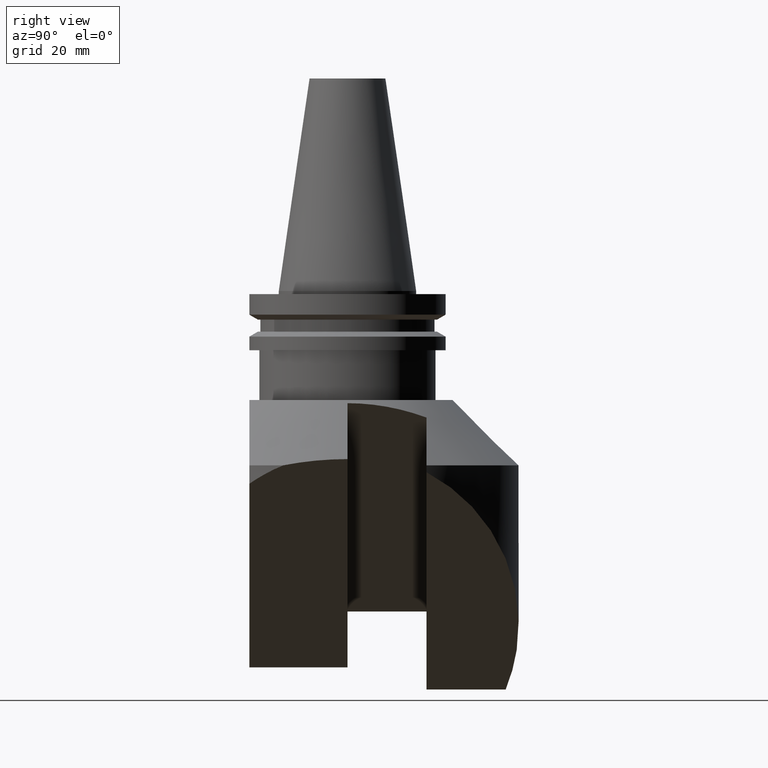
[diagram: clean part render]
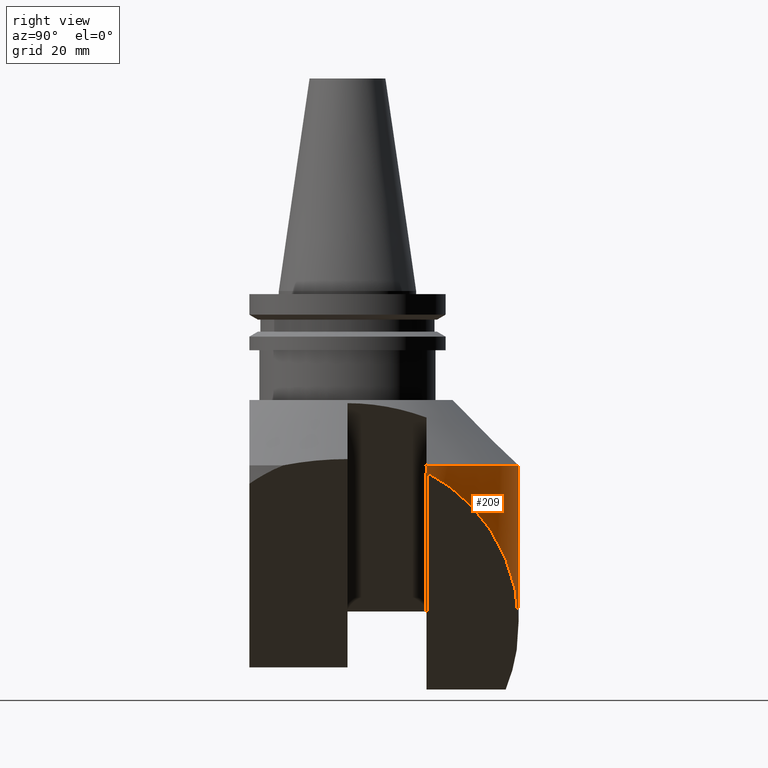
[diagram: same view with one face highlighted and labeled with its STEP entity id]
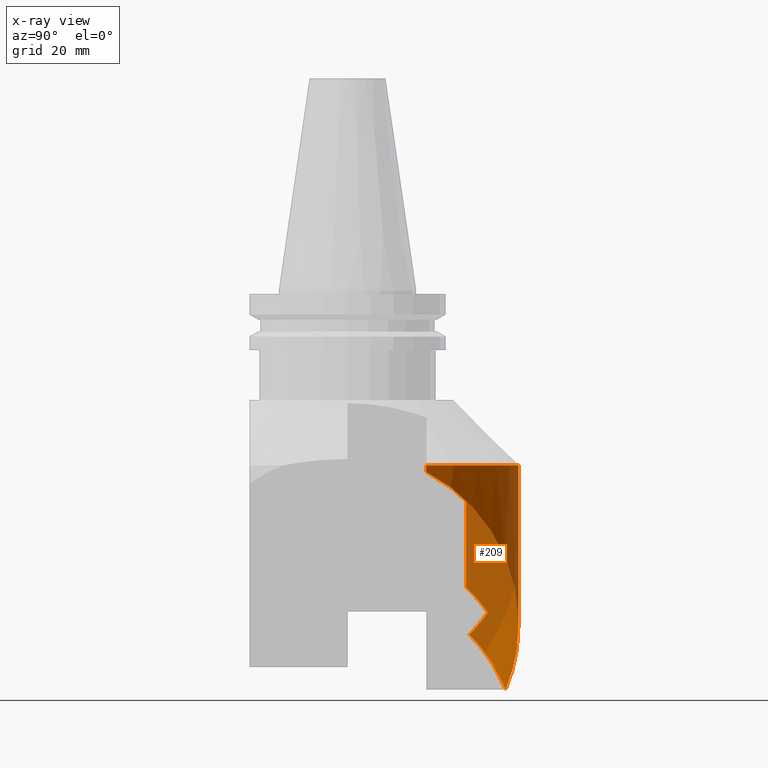
[diagram: x-ray of the same camera — body ghosted, the highlighted face saturated]
A machine part, right view. The second image highlights one B-rep face of the part: STEP entity #209.
The next image is the same camera in x-ray: the body ghosted, the highlighted face saturated — about 40% of this face is hidden behind the body in this view.
In plain terms, the highlighted cylindrical surface (partial cylindrical patch) has radius 55 mm, axis along (0, -0, -1).
Its self-contained STEP definition (entity closure, byte-faithful):
#121=EDGE_CURVE('Unnamed[1]',#344,#345,#346,.T.);
#144=EDGE_CURVE('Unnamed[1]',#383,#384,#385,.T.);
#160=EDGE_CURVE('Unnamed[1]',#406,#383,#407,.T.);
#209=ADVANCED_FACE('Unnamed[1]',(#473),#474,.T.);
#222=EDGE_CURVE('Unnamed[1]',#493,#344,#494,.T.);
#229=EDGE_CURVE('Unnamed[1]',#384,#417,#502,.T.);
#233=EDGE_CURVE('Unnamed[1]',#417,#493,#506,.T.);
#253=EDGE_CURVE('Unnamed[1]',#345,#406,#533,.T.);
#344=VERTEX_POINT('',#644);
#345=VERTEX_POINT('',#645);
#346=CIRCLE('',#646,55.0000000000001);
#383=VERTEX_POINT('',#731);
#384=VERTEX_POINT('',#732);
#385=ELLIPSE('',#733,77.781745860767,55.0);
#406=VERTEX_POINT('',#772);
#407=ELLIPSE('',#773,77.7817459305204,55.0);
#417=VERTEX_POINT('',#787);
#473=FACE_OUTER_BOUND('',#876,.T.);
#474=CYLINDRICAL_SURFACE('',#877,55.0);
#493=VERTEX_POINT('',#902);
#494=LINE('',#903,#904);
#502=ELLIPSE('',#915,77.7817459305204,55.0);
#506=ELLIPSE('',#930,77.7817459305214,55.0);
#533=LINE('',#967,#968);
#644=CARTESIAN_POINT('',(-39.6511627906968,38.1154206240154,-56.0000000000001));
#645=CARTESIAN_POINT('',(48.7836038029177,25.4000000000002,-55.9999999999998));
#646=AXIS2_PLACEMENT_3D('',#1107,#1108,#1109);
#731=CARTESIAN_POINT('',(-20.9999999980969,50.8330601093412,-127.999999998097));
#732=CARTESIAN_POINT('',(-38.6069588654316,39.1727293810735,-110.393041162342));
#733=AXIS2_PLACEMENT_3D('',#1150,#1151,#1152);
#772=CARTESIAN_POINT('',(48.7836038029176,25.4000000000002,-58.2163961970819));
#773=AXIS2_PLACEMENT_3D('',#1177,#1178,#1179);
#787=CARTESIAN_POINT('',(-31.535891039679,45.0609318182997,-103.321973336589));
#876=EDGE_LOOP('',(#1246,#1247,#1248,#1249,#1250,#1251,#1252));
#877=AXIS2_PLACEMENT_3D('',#1253,#1254,#1255);
#902=CARTESIAN_POINT('',(-39.651162790697,38.1154206240154,-95.2067015855711));
#903=CARTESIAN_POINT('',(-39.6511627906969,38.1154206240154,-276.895414657619));
#904=VECTOR('',#1275,1.0);
#915=AXIS2_PLACEMENT_3D('',#1288,#1289,#1290);
#930=AXIS2_PLACEMENT_3D('',#1291,#1292,#1293);
#967=CARTESIAN_POINT('',(48.7836038029179,25.4000000000001,-91.9999999990443));
#968=VECTOR('',#1328,1.0);
#1107=CARTESIAN_POINT('',(5.18444349174941E-013,-3.42901103761268E-015,-56.0));
#1108=DIRECTION('',(4.23985966663278E-015,-6.12323399573684E-017,-1.0));
#1109=DIRECTION('',(-1.0,1.83697019872103E-016,-4.23985966663278E-015));
#1150=CARTESIAN_POINT('',(9.12751297995963E-013,-9.12361865110866E-015,-148.99999995853));
#1151=DIRECTION('',(0.707106780552424,-8.65956054682338E-017,0.707106781820671));
#1152=DIRECTION('',(-0.707106781820671,1.73191211324756E-016,0.707106780552424));
#1177=CARTESIAN_POINT('',(7.3467719217321E-013,-6.55186037543844E-015,-106.999999999999));
#1178=DIRECTION('',(-0.707106781186552,1.73191211247099E-016,0.707106781186543));
#1179=DIRECTION('',(-0.707106781186543,8.65956056235482E-017,-0.707106781186552));
#1246=ORIENTED_EDGE('',*,*,#253,.T.);
#1247=ORIENTED_EDGE('',*,*,#160,.T.);
#1248=ORIENTED_EDGE('',*,*,#144,.T.);
#1249=ORIENTED_EDGE('',*,*,#229,.T.);
#1250=ORIENTED_EDGE('',*,*,#233,.T.);
#1251=ORIENTED_EDGE('',*,*,#222,.T.);
#1252=ORIENTED_EDGE('',*,*,#121,.T.);
#1253=CARTESIAN_POINT('',(6.71079297173717E-013,-5.63337527607789E-015,-91.999999999999));
#1254=DIRECTION('',(4.23985966663278E-015,-6.12323399573684E-017,-1.0));
#1255=DIRECTION('',(-1.0,1.83697019872103E-016,-4.23985966663278E-015));
#1275=DIRECTION('',(-1.22464679914735E-016,6.12323399573677E-017,1.0));
#1288=CARTESIAN_POINT('',(5.85375122799753E-013,-4.39562979541203E-015,-71.7860822969094));
#1289=DIRECTION('',(0.707106781186552,-1.73191211247099E-016,-0.707106781186543));
#1290=DIRECTION('',(-0.707106781186544,8.65956056235483E-017,-0.707106781186552));
#1291=CARTESIAN_POINT('',(8.52790627740685E-013,-8.25766259741249E-015,-134.85786437627));
#1292=DIRECTION('',(0.707106781186555,-8.65956056235512E-017,0.70710678118654));
#1293=DIRECTION('',(-0.70710678118654,1.73191211247098E-016,0.707106781186555));
#1328=DIRECTION('',(4.23985966663277E-015,-6.12323399573684E-017,-1.0));